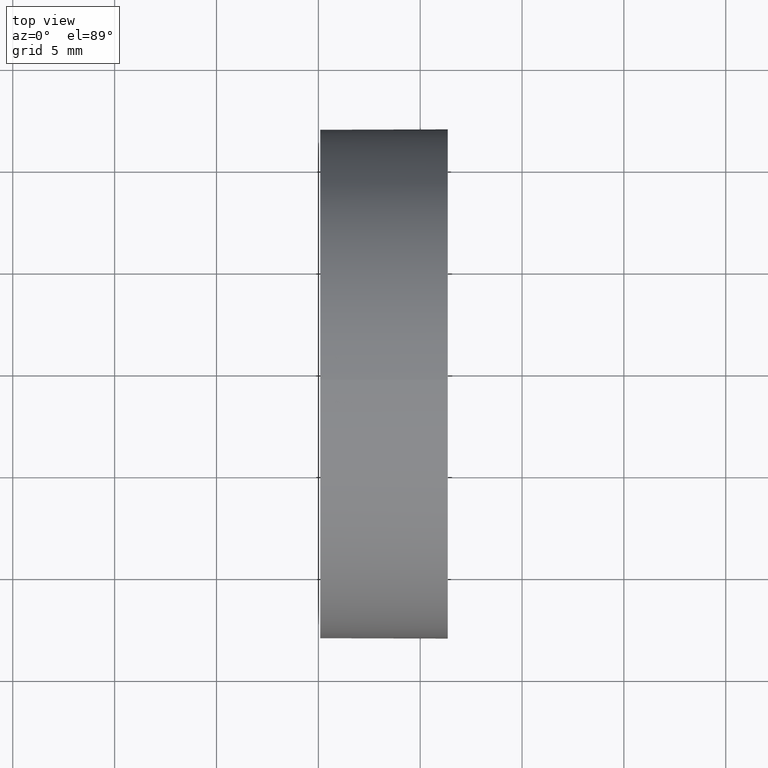
[diagram: clean part render]
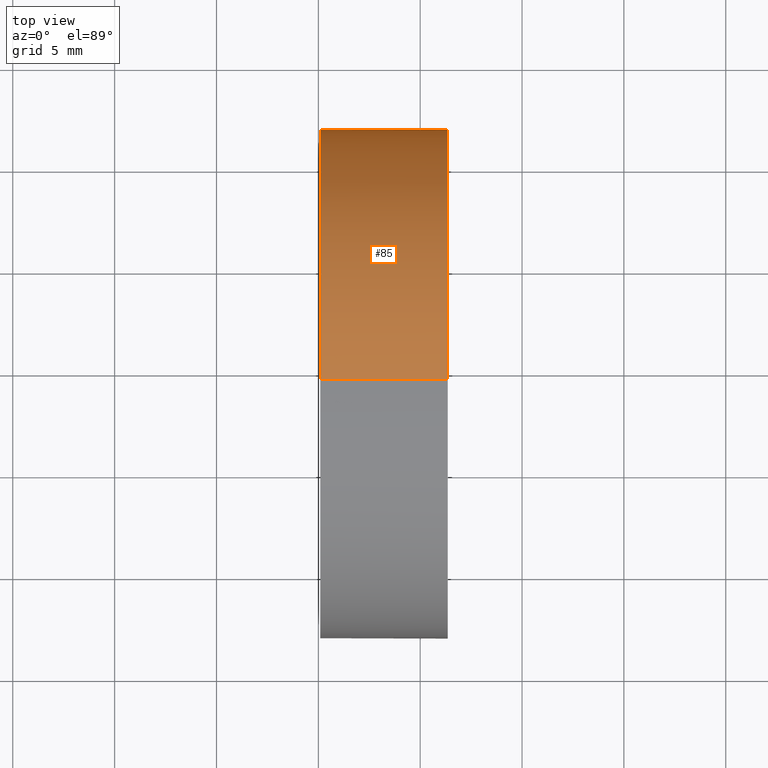
[diagram: same view with one face highlighted and labeled with its STEP entity id]
A machine part, top view. The second image highlights one B-rep face of the part: STEP entity #85.
In plain terms, the highlighted cylindrical surface (partial cylindrical patch) has radius 12.5 mm, axis along (-1, -0, -0).
Its self-contained STEP definition (entity closure, byte-faithful):
#2 = CARTESIAN_POINT ( 'NONE',  ( 108.9851430021651000, 69.37802112337243400, 12.50000000000001100 ) ) ;
#3 = CIRCLE ( 'NONE', #38, 12.49999999999999600 ) ;
#8 = ORIENTED_EDGE ( 'NONE', *, *, #75, .T. ) ;
#9 = VECTOR ( 'NONE', #96, 1000.000000000000000 ) ;
#11 = DIRECTION ( 'NONE',  ( 0.0000000000000000000, 0.0000000000000000000, 1.000000000000000000 ) ) ;
#14 = CARTESIAN_POINT ( 'NONE',  ( 121.3531853088416000, 69.37802112337243400, 0.0000000000000000000 ) ) ;
#24 = CYLINDRICAL_SURFACE ( 'NONE', #89, 12.50000000000001100 ) ;
#25 = EDGE_CURVE ( 'NONE', #77, #121, #3, .T. ) ;
#28 = CARTESIAN_POINT ( 'NONE',  ( 115.0926555349195200, 69.37802112337243400, 12.49999999999999600 ) ) ;
#37 = CARTESIAN_POINT ( 'NONE',  ( 108.9851430021651000, 69.37802112337243400, -12.50000000000001100 ) ) ;
#38 = AXIS2_PLACEMENT_3D ( 'NONE', #74, #167, #84 ) ;
#41 = DIRECTION ( 'NONE',  ( -1.000000000000000000, -0.0000000000000000000, -0.0000000000000000000 ) ) ;
#46 = LINE ( 'NONE', #37, #9 ) ;
#54 = AXIS2_PLACEMENT_3D ( 'NONE', #14, #169, #136 ) ;
#57 = DIRECTION ( 'NONE',  ( 0.0000000000000000000, 0.0000000000000000000, 1.000000000000000000 ) ) ;
#65 = FACE_OUTER_BOUND ( 'NONE', #113, .T. ) ;
#66 = CARTESIAN_POINT ( 'NONE',  ( 121.3531853088416000, 69.37802112337243400, -12.50000000000002500 ) ) ;
#70 = EDGE_CURVE ( 'NONE', #119, #102, #138, .T. ) ;
#71 = ORIENTED_EDGE ( 'NONE', *, *, #163, .F. ) ;
#74 = CARTESIAN_POINT ( 'NONE',  ( 115.0926555349195200, 69.37802112337243400, 0.0000000000000000000 ) ) ;
#75 = EDGE_CURVE ( 'NONE', #102, #186, #170, .T. ) ;
#76 = CARTESIAN_POINT ( 'NONE',  ( 121.3531853088416000, 69.37802112337243400, 12.50000000000002500 ) ) ;
#77 = VERTEX_POINT ( 'NONE', #28 ) ;
#82 = ORIENTED_EDGE ( 'NONE', *, *, #25, .F. ) ;
#84 = DIRECTION ( 'NONE',  ( 0.0000000000000000000, 0.0000000000000000000, 1.000000000000000000 ) ) ;
#85 = ADVANCED_FACE ( 'NONE', ( #65 ), #24, .T. ) ;
#88 = CARTESIAN_POINT ( 'NONE',  ( 121.3531853088416000, 69.37802112337243400, 0.0000000000000000000 ) ) ;
#89 = AXIS2_PLACEMENT_3D ( 'NONE', #124, #110, #57 ) ;
#96 = DIRECTION ( 'NONE',  ( -1.000000000000000000, -0.0000000000000000000, -0.0000000000000000000 ) ) ;
#102 = VERTEX_POINT ( 'NONE', #123 ) ;
#105 = DIRECTION ( 'NONE',  ( -1.000000000000000000, -0.0000000000000000000, -0.0000000000000000000 ) ) ;
#110 = DIRECTION ( 'NONE',  ( -1.000000000000000000, -0.0000000000000000000, -0.0000000000000000000 ) ) ;
#113 = EDGE_LOOP ( 'NONE', ( #8, #155, #82, #71, #116 ) ) ;
#116 = ORIENTED_EDGE ( 'NONE', *, *, #70, .T. ) ;
#119 = VERTEX_POINT ( 'NONE', #76 ) ;
#121 = VERTEX_POINT ( 'NONE', #130 ) ;
#123 = CARTESIAN_POINT ( 'NONE',  ( 121.3531853088415900, 81.87802112337266200, 1.530808498934217400E-015 ) ) ;
#124 = CARTESIAN_POINT ( 'NONE',  ( 108.9851430021651000, 69.37802112337243400, 0.0000000000000000000 ) ) ;
#129 = VECTOR ( 'NONE', #105, 1000.000000000000000 ) ;
#130 = CARTESIAN_POINT ( 'NONE',  ( 115.0926555349195200, 69.37802112337243400, -12.49999999999999600 ) ) ;
#136 = DIRECTION ( 'NONE',  ( 0.0000000000000000000, 0.0000000000000000000, 1.000000000000000000 ) ) ;
#138 = CIRCLE ( 'NONE', #149, 12.50000000000002500 ) ;
#146 = EDGE_CURVE ( 'NONE', #186, #121, #46, .T. ) ;
#149 = AXIS2_PLACEMENT_3D ( 'NONE', #88, #41, #11 ) ;
#153 = LINE ( 'NONE', #2, #129 ) ;
#155 = ORIENTED_EDGE ( 'NONE', *, *, #146, .T. ) ;
#163 = EDGE_CURVE ( 'NONE', #119, #77, #153, .T. ) ;
#167 = DIRECTION ( 'NONE',  ( -1.000000000000000000, -0.0000000000000000000, -0.0000000000000000000 ) ) ;
#169 = DIRECTION ( 'NONE',  ( -1.000000000000000000, -0.0000000000000000000, -0.0000000000000000000 ) ) ;
#170 = CIRCLE ( 'NONE', #54, 12.50000000000002500 ) ;
#186 = VERTEX_POINT ( 'NONE', #66 ) ;